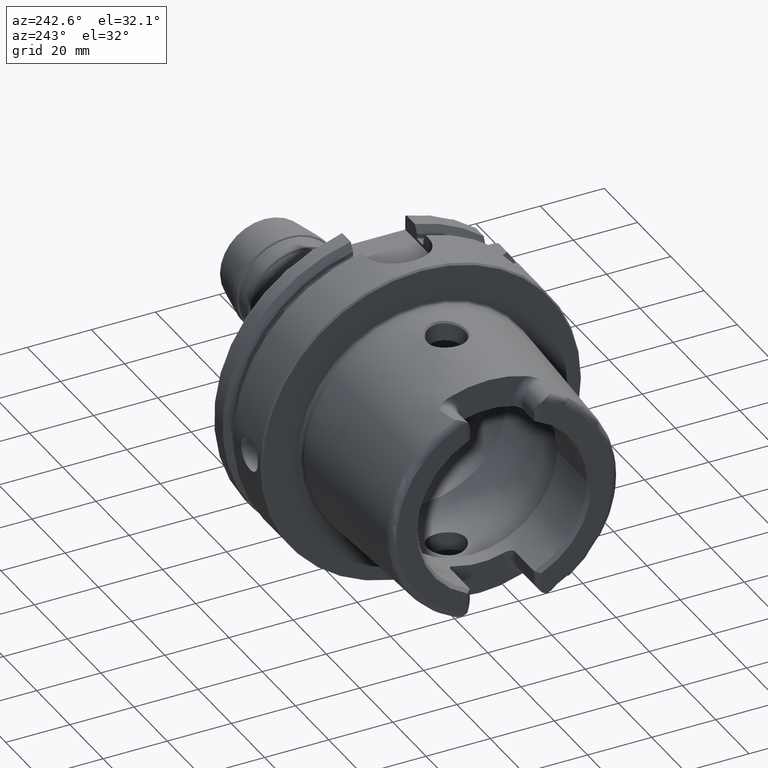
[diagram: clean part render]
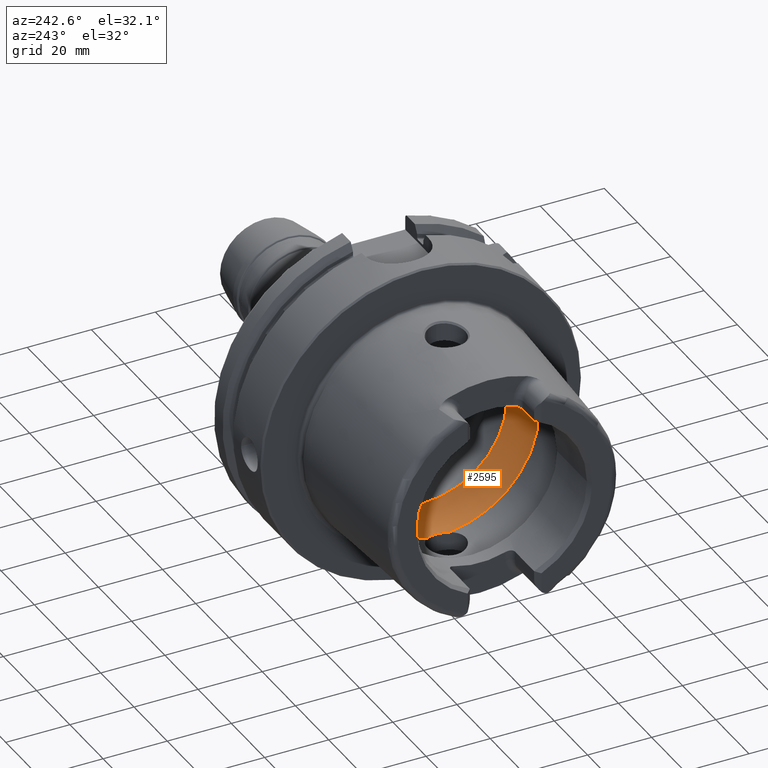
[diagram: same view with one face highlighted and labeled with its STEP entity id]
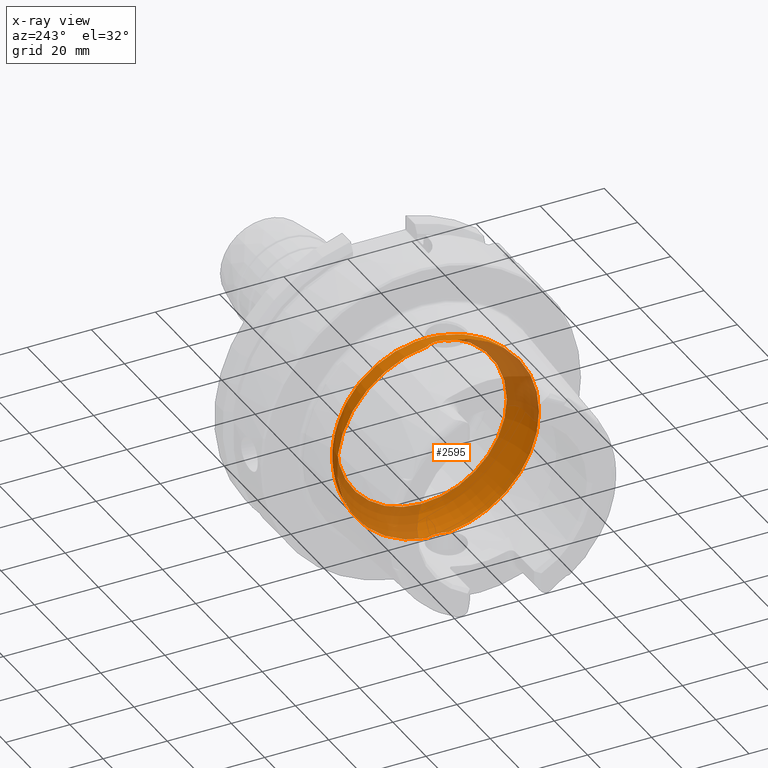
[diagram: x-ray of the same camera — body ghosted, the highlighted face saturated]
A machine part, auxiliary view. The second image highlights one B-rep face of the part: STEP entity #2595.
The next image is the same camera in x-ray: the body ghosted, the highlighted face saturated — about 36% of this face is hidden behind the body in this view.
In plain terms, the highlighted toroidal blend (fillet) surface has major radius 19.5 mm and minor (blend) radius 12 mm.
Its self-contained STEP definition (entity closure, byte-faithful):
#49=B_SPLINE_CURVE_WITH_KNOTS('',3,(#4696,#4697,#4698,#4699,#4700,#4701,
#4702,#4703,#4704,#4705),.UNSPECIFIED.,.F.,.F.,(4,2,2,2,4),(-0.704306975532235,
-0.563368317577754,-0.446049375641081,-0.386534165165624,-0.352317223799877),
 .UNSPECIFIED.);
#51=B_SPLINE_CURVE_WITH_KNOTS('',3,(#4738,#4739,#4740,#4741,#4742,#4743,
#4744,#4745,#4746,#4747),.UNSPECIFIED.,.F.,.F.,(4,2,2,2,4),(-0.352317223799877,
-0.339935606805379,-0.289031750490702,-0.208814277120691,0.),
 .UNSPECIFIED.);
#54=B_SPLINE_CURVE_WITH_KNOTS('',3,(#4888,#4889,#4890,#4891,#4892,#4893,
#4894,#4895,#4896,#4897),.UNSPECIFIED.,.F.,.F.,(4,2,2,2,4),(-0.704306975532881,
-0.563368317578124,-0.446049375641235,-0.386534165165663,-0.352317223799864),
 .UNSPECIFIED.);
#56=B_SPLINE_CURVE_WITH_KNOTS('',3,(#4930,#4931,#4932,#4933,#4934,#4935,
#4936,#4937,#4938,#4939),.UNSPECIFIED.,.F.,.F.,(4,2,2,2,4),(-0.352317223799864,
-0.339935606805357,-0.289031750490679,-0.208814277120681,0.),
 .UNSPECIFIED.);
#483=FACE_OUTER_BOUND('',#626,.T.);
#626=EDGE_LOOP('',(#2031,#2032,#2033,#2034,#2035,#2036,#2037,#2038,#2039,
#2040,#2041,#2042));
#838=CIRCLE('',#2880,31.5);
#842=CIRCLE('',#2884,31.5);
#843=CIRCLE('',#2885,31.5);
#844=CIRCLE('',#2887,26.5);
#845=CIRCLE('',#2888,26.5);
#846=CIRCLE('',#2889,26.5);
#847=CIRCLE('',#2890,12.);
#1104=VERTEX_POINT('',#4693);
#1105=VERTEX_POINT('',#4695);
#1106=VERTEX_POINT('',#4706);
#1109=VERTEX_POINT('',#4886);
#1110=VERTEX_POINT('',#4887);
#1111=VERTEX_POINT('',#4898);
#1113=VERTEX_POINT('',#4944);
#1117=VERTEX_POINT('',#4956);
#1118=VERTEX_POINT('',#4957);
#1119=VERTEX_POINT('',#4959);
#1442=EDGE_CURVE('',#1105,#1104,#49,.T.);
#1444=EDGE_CURVE('',#1104,#1106,#51,.T.);
#1448=EDGE_CURVE('',#1109,#1110,#54,.T.);
#1450=EDGE_CURVE('',#1110,#1111,#56,.T.);
#1453=EDGE_CURVE('',#1113,#1109,#838,.T.);
#1458=EDGE_CURVE('',#1106,#1113,#842,.T.);
#1459=EDGE_CURVE('',#1111,#1105,#843,.T.);
#1460=EDGE_CURVE('',#1117,#1118,#844,.T.);
#1461=EDGE_CURVE('',#1119,#1117,#845,.T.);
#1462=EDGE_CURVE('',#1118,#1119,#846,.T.);
#1463=EDGE_CURVE('',#1118,#1104,#847,.T.);
#2031=ORIENTED_EDGE('',*,*,#1460,.F.);
#2032=ORIENTED_EDGE('',*,*,#1461,.F.);
#2033=ORIENTED_EDGE('',*,*,#1462,.F.);
#2034=ORIENTED_EDGE('',*,*,#1463,.T.);
#2035=ORIENTED_EDGE('',*,*,#1444,.T.);
#2036=ORIENTED_EDGE('',*,*,#1458,.T.);
#2037=ORIENTED_EDGE('',*,*,#1453,.T.);
#2038=ORIENTED_EDGE('',*,*,#1448,.T.);
#2039=ORIENTED_EDGE('',*,*,#1450,.T.);
#2040=ORIENTED_EDGE('',*,*,#1459,.T.);
#2041=ORIENTED_EDGE('',*,*,#1442,.T.);
#2042=ORIENTED_EDGE('',*,*,#1463,.F.);
#2520=TOROIDAL_SURFACE('',#2886,19.5,12.);
#2595=ADVANCED_FACE('',(#483),#2520,.F.);
#2880=AXIS2_PLACEMENT_3D('',#4945,#3490,#3491);
#2884=AXIS2_PLACEMENT_3D('',#4953,#3499,#3500);
#2885=AXIS2_PLACEMENT_3D('',#4954,#3501,#3502);
#2886=AXIS2_PLACEMENT_3D('',#4955,#3503,#3504);
#2887=AXIS2_PLACEMENT_3D('',#4958,#3505,#3506);
#2888=AXIS2_PLACEMENT_3D('',#4960,#3507,#3508);
#2889=AXIS2_PLACEMENT_3D('',#4961,#3509,#3510);
#2890=AXIS2_PLACEMENT_3D('',#4962,#3511,#3512);
#3490=DIRECTION('center_axis',(-1.,0.,0.));
#3491=DIRECTION('ref_axis',(0.,0.,1.));
#3499=DIRECTION('center_axis',(-1.,0.,0.));
#3500=DIRECTION('ref_axis',(0.,0.,1.));
#3501=DIRECTION('center_axis',(-1.,0.,0.));
#3502=DIRECTION('ref_axis',(0.,0.,1.));
#3503=DIRECTION('center_axis',(-1.,0.,0.));
#3504=DIRECTION('ref_axis',(0.,0.,1.));
#3505=DIRECTION('center_axis',(-1.,0.,0.));
#3506=DIRECTION('ref_axis',(0.,0.,1.));
#3507=DIRECTION('center_axis',(-1.,0.,0.));
#3508=DIRECTION('ref_axis',(0.,0.,1.));
#3509=DIRECTION('center_axis',(-1.,0.,0.));
#3510=DIRECTION('ref_axis',(0.,0.,1.));
#3511=DIRECTION('center_axis',(0.,1.,-1.22464679914735E-16));
#3512=DIRECTION('ref_axis',(0.,-1.22464679914735E-16,-1.));
#4693=CARTESIAN_POINT('',(-9.,7.31685969699336E-16,-31.4582607431014));
#4695=CARTESIAN_POINT('',(-10.,3.31662479035542,-31.3249102153542));
#4696=CARTESIAN_POINT('Ctrl Pts',(-10.,3.31662479035541,-31.3249102153542));
#4697=CARTESIAN_POINT('Ctrl Pts',(-9.74127936765642,2.9265887617158,-31.3662065240371));
#4698=CARTESIAN_POINT('Ctrl Pts',(-9.52862762836098,2.50688318043554,-31.3949925235713));
#4699=CARTESIAN_POINT('Ctrl Pts',(-9.23240476385999,1.69927856892452,-31.4324255053116));
#4700=CARTESIAN_POINT('Ctrl Pts',(-9.13392344910017,1.31988974241601,-31.4435429781858));
#4701=CARTESIAN_POINT('Ctrl Pts',(-9.04220079429722,0.737558982965052,-31.4537190708018));
#4702=CARTESIAN_POINT('Ctrl Pts',(-9.02106779489129,0.540134132990375,-31.4559959808551));
#4703=CARTESIAN_POINT('Ctrl Pts',(-9.00325309475839,0.228126507331767,-31.4579131546092));
#4704=CARTESIAN_POINT('Ctrl Pts',(-9.,0.114070256385601,-31.4582607431014));
#4705=CARTESIAN_POINT('Ctrl Pts',(-9.,6.93889390390723E-16,-31.4582607431014));
#4706=CARTESIAN_POINT('',(-10.,-3.31662479035542,-31.3249102153542));
#4738=CARTESIAN_POINT('Ctrl Pts',(-9.,7.01335490450834E-16,-31.4582607431014));
#4739=CARTESIAN_POINT('Ctrl Pts',(-9.,-0.0412770448981316,-31.4582607431014));
#4740=CARTESIAN_POINT('Ctrl Pts',(-9.0004259501075,-0.0825559236689198,
-31.4582151361457));
#4741=CARTESIAN_POINT('Ctrl Pts',(-9.00478075477959,-0.293516919658797,
-31.4577484235034));
#4742=CARTESIAN_POINT('Ctrl Pts',(-9.01548241237086,-0.462981091842713,
-31.4566045938877));
#4743=CARTESIAN_POINT('Ctrl Pts',(-9.06151123201634,-0.897706518793593,
-31.4515940123075));
#4744=CARTESIAN_POINT('Ctrl Pts',(-9.10742242341762,-1.16146830462694,-31.4465573898449));
#4745=CARTESIAN_POINT('Ctrl Pts',(-9.33560100291262,-2.09736419662528,-31.4200720324784));
#4746=CARTESIAN_POINT('Ctrl Pts',(-9.61673416003176,-2.73882979665765,-31.3860861033828));
#4747=CARTESIAN_POINT('Ctrl Pts',(-10.,-3.31662479035541,-31.3249102153542));
#4886=CARTESIAN_POINT('',(-10.,-3.31662479035542,31.3249102153542));
#4887=CARTESIAN_POINT('',(-8.99999999999999,7.75054056598756E-16,31.4582607431014));
#4888=CARTESIAN_POINT('Ctrl Pts',(-9.99999999999999,-3.31662479035541,31.3249102153542));
#4889=CARTESIAN_POINT('Ctrl Pts',(-9.74127936765643,-2.92658876171583,31.3662065240371));
#4890=CARTESIAN_POINT('Ctrl Pts',(-9.52862762836099,-2.50688318043561,31.3949925235713));
#4891=CARTESIAN_POINT('Ctrl Pts',(-9.23240476385996,-1.69927856892447,31.4324255053116));
#4892=CARTESIAN_POINT('Ctrl Pts',(-9.13392344910015,-1.31988974241592,31.4435429781858));
#4893=CARTESIAN_POINT('Ctrl Pts',(-9.04220079429722,-0.737558982965067,
31.4537190708018));
#4894=CARTESIAN_POINT('Ctrl Pts',(-9.02106779489129,-0.540134132990415,
31.4559959808551));
#4895=CARTESIAN_POINT('Ctrl Pts',(-9.00325309475839,-0.228126507331796,
31.4579131546092));
#4896=CARTESIAN_POINT('Ctrl Pts',(-8.99999999999999,-0.114070256385655,
31.4582607431014));
#4897=CARTESIAN_POINT('Ctrl Pts',(-8.99999999999999,7.97972798949331E-16,
31.4582607431014));
#4898=CARTESIAN_POINT('',(-10.,3.31662479035542,31.3249102153542));
#4930=CARTESIAN_POINT('Ctrl Pts',(-8.99999999999999,8.16547887892294E-16,
31.4582607431014));
#4931=CARTESIAN_POINT('Ctrl Pts',(-8.99999999999999,0.0412770448981195,
31.4582607431014));
#4932=CARTESIAN_POINT('Ctrl Pts',(-9.00042595010749,0.0825559236689046,
31.4582151361457));
#4933=CARTESIAN_POINT('Ctrl Pts',(-9.00478075477959,0.293516919658727,31.4577484235034));
#4934=CARTESIAN_POINT('Ctrl Pts',(-9.01548241237085,0.462981091842669,31.4566045938877));
#4935=CARTESIAN_POINT('Ctrl Pts',(-9.06151123201633,0.897706518793561,31.4515940123075));
#4936=CARTESIAN_POINT('Ctrl Pts',(-9.1074224234176,1.16146830462691,31.4465573898449));
#4937=CARTESIAN_POINT('Ctrl Pts',(-9.33560100291262,2.09736419662534,31.4200720324784));
#4938=CARTESIAN_POINT('Ctrl Pts',(-9.61673416003176,2.73882979665767,31.3860861033828));
#4939=CARTESIAN_POINT('Ctrl Pts',(-9.99999999999999,3.3166247903554,31.3249102153542));
#4944=CARTESIAN_POINT('',(-10.,-31.5,3.85763741731416E-15));
#4945=CARTESIAN_POINT('Origin',(-10.,0.,0.));
#4953=CARTESIAN_POINT('Origin',(-10.,0.,0.));
#4954=CARTESIAN_POINT('Origin',(-10.,0.,0.));
#4955=CARTESIAN_POINT('Origin',(-10.,0.,0.));
#4956=CARTESIAN_POINT('',(-0.253205655191035,26.5,0.));
#4957=CARTESIAN_POINT('',(-0.253205655191033,-3.24531401774049E-15,-26.5));
#4958=CARTESIAN_POINT('Origin',(-0.253205655191033,0.,0.));
#4959=CARTESIAN_POINT('',(-0.253205655191033,-26.5,3.24531401774049E-15));
#4960=CARTESIAN_POINT('Origin',(-0.253205655191033,0.,0.));
#4961=CARTESIAN_POINT('Origin',(-0.253205655191033,0.,0.));
#4962=CARTESIAN_POINT('Origin',(-10.,-2.38806125833734E-15,-19.5));